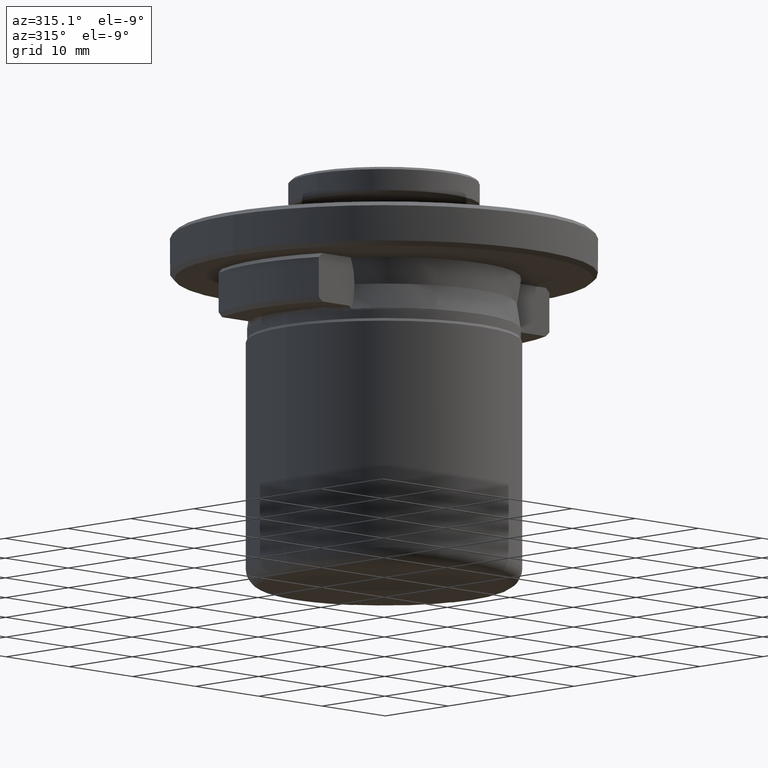
[diagram: clean part render]
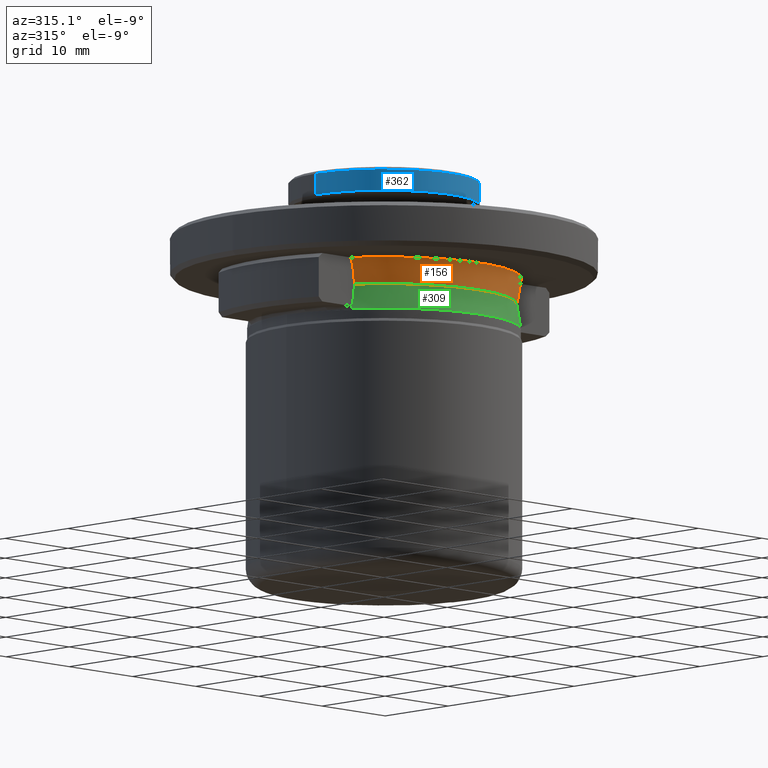
[diagram: same view with three faces highlighted in distinct colors, each labeled with its STEP entity id]
A machine part, auxiliary view with three faces highlighted in distinct colors.
Their STEP definitions:

[orange] entity #156 — the highlighted face is a freeform B-spline surface patch.
#75 = CARTESIAN_POINT ( 'NONE',  ( -12.60188477980667600, -7.949999999999998400, 4.986887970934607700 ) ) ;
#82 = EDGE_CURVE ( 'NONE', #1122, #205, #909, .T. ) ;
#103 = EDGE_CURVE ( 'NONE', #205, #1400, #744, .T. ) ;
#120 = CARTESIAN_POINT ( 'NONE',  ( -13.75342066000000000, -7.969989367000000200, 8.593484004000002200 ) ) ;
#141 = CARTESIAN_POINT ( 'NONE',  ( -12.65280249184317700, -7.950000000000002000, 5.491855283282468700 ) ) ;
#143 = CARTESIAN_POINT ( 'NONE',  ( 12.85084947184995100, -7.949999999999985100, 6.480297289655153400 ) ) ;
#156 = ADVANCED_FACE ( 'NONE', ( #249 ), #256, .F. ) ;
#196 =( BOUNDED_CURVE ( )  B_SPLINE_CURVE ( 3, ( #370, #1384, #513, #1535 ),
 .UNSPECIFIED., .F., .F. ) 
 B_SPLINE_CURVE_WITH_KNOTS ( ( 4, 4 ),
 ( 0.0002294820974848767600, 0.03175008702777497300 ),
 .UNSPECIFIED. ) 
 CURVE ( )  GEOMETRIC_REPRESENTATION_ITEM ( )  RATIONAL_B_SPLINE_CURVE ( ( 0.9752203916884096800, 0.6606863898820863900, 0.6606863898822233900, 0.9752203916888209100 ) ) 
 REPRESENTATION_ITEM ( '' )  );
#205 = VERTEX_POINT ( 'NONE', #1415 ) ;
#249 = FACE_OUTER_BOUND ( 'NONE', #815, .T. ) ;
#256 =( BOUNDED_SURFACE ( )  B_SPLINE_SURFACE ( 3, 3, ( 
 ( #1729, #1021, #1102, #1681 ),
 ( #1829, #377, #1365, #1184 ),
 ( #735, #753, #1038, #1048 ),
 ( #120, #881, #388, #1465 ) ),
 .UNSPECIFIED., .F., .F., .F. ) 
 B_SPLINE_SURFACE_WITH_KNOTS ( ( 4, 4 ),
 ( 4, 4 ),
 ( 0.0000000000000000000, 1.000000000000000000 ),
 ( 0.0000000000000000000, 1.000000000000000000 ),
 .UNSPECIFIED. ) 
 GEOMETRIC_REPRESENTATION_ITEM ( )  RATIONAL_B_SPLINE_SURFACE ( (
 ( 1.000000000000000000, 0.6675925262800090900, 0.6675925262800090900, 1.000000000000000000),
 ( 0.9726495440996750800, 0.6493335663306010200, 0.6493335663306010200, 0.9726495440996750800),
 ( 0.9726495440996750800, 0.6493335663306010200, 0.6493335663306010200, 0.9726495440996750800),
 ( 1.000000000000000000, 0.6675925262800090900, 0.6675925262800090900, 1.000000000000000000) ) ) 
 REPRESENTATION_ITEM ( '' )  SURFACE ( )  );
#291 = CARTESIAN_POINT ( 'NONE',  ( 5.204170427930421300E-015, 2.532479434491641300E-011, 4.478485616159577600 ) ) ;
#299 = CARTESIAN_POINT ( 'NONE',  ( -12.99950658810082000, -7.950000000000002000, 6.969791976195358200 ) ) ;
#370 = CARTESIAN_POINT ( 'NONE',  ( 13.19009165178885300, -7.949999999890235500, 7.438485615054234200 ) ) ;
#377 = CARTESIAN_POINT ( 'NONE',  ( -6.380965633999999800, -18.44760542900000300, 5.320036143999999500 ) ) ;
#388 = CARTESIAN_POINT ( 'NONE',  ( 6.867173271999999600, -19.85324952300000200, 8.593484004000002200 ) ) ;
#418 = CARTESIAN_POINT ( 'NONE',  ( -12.60188477964945100, -7.950000000000000200, 4.478485616309445300 ) ) ;
#453 = ORIENTED_EDGE ( 'NONE', *, *, #82, .F. ) ;
#513 = CARTESIAN_POINT ( 'NONE',  ( -6.489839730005988000, -19.06659584101090800, 7.438485615027141200 ) ) ;
#589 = CARTESIAN_POINT ( 'NONE',  ( 12.60188477980673700, -7.949999999999998400, 4.987038944252672600 ) ) ;
#735 = CARTESIAN_POINT ( 'NONE',  ( -13.06160257300000200, -7.569086716999999400, 7.038194950000000300 ) ) ;
#744 = CIRCLE ( 'NONE', #1471, 14.89999999993788300 ) ;
#753 = CARTESIAN_POINT ( 'NONE',  ( -6.521743957000000000, -18.85460071800000400, 7.038194949999999400 ) ) ;
#815 = EDGE_LOOP ( 'NONE', ( #453, #1803, #1699, #1895 ) ) ;
#881 = CARTESIAN_POINT ( 'NONE',  ( -6.867173271999999600, -19.85324952300000200, 8.593484004000002200 ) ) ;
#909 = B_SPLINE_CURVE_WITH_KNOTS ( 'NONE', 3,
 ( #1767, #1621, #143, #1327, #589, #1616 ),
 .UNSPECIFIED., .F., .F.,
 ( 4, 2, 4 ),
 ( 0.0003645973360006911200, 0.001884080257134381700, 0.003403563178268072300 ),
 .UNSPECIFIED. ) ;
#982 = EDGE_CURVE ( 'NONE', #1122, #1166, #196, .T. ) ;
#1021 = CARTESIAN_POINT ( 'NONE',  ( -6.456389356999999900, -18.66565817500000100, 3.579984865000000600 ) ) ;
#1038 = CARTESIAN_POINT ( 'NONE',  ( 6.521743957000000000, -18.85460071800000400, 7.038194949999999400 ) ) ;
#1042 = EDGE_CURVE ( 'NONE', #1400, #1166, #1315, .T. ) ;
#1048 = CARTESIAN_POINT ( 'NONE',  ( 13.06160257300000200, -7.569086716999999400, 7.038194950000000300 ) ) ;
#1102 = CARTESIAN_POINT ( 'NONE',  ( 6.456389356999999900, -18.66565817500000100, 3.579984865000000600 ) ) ;
#1122 = VERTEX_POINT ( 'NONE', #1350 ) ;
#1166 = VERTEX_POINT ( 'NONE', #1220 ) ;
#1184 = CARTESIAN_POINT ( 'NONE',  ( 12.77965490400000300, -7.405700459999999400, 5.320036143999999500 ) ) ;
#1188 = CARTESIAN_POINT ( 'NONE',  ( -12.85255390096339000, -7.950000000000000200, 6.487167108542434100 ) ) ;
#1220 = CARTESIAN_POINT ( 'NONE',  ( -13.19009165193771700, -7.950000000000000200, 7.438485615024348800 ) ) ;
#1315 = B_SPLINE_CURVE_WITH_KNOTS ( 'NONE', 3,
 ( #1550, #75, #141, #1188, #299, #1325 ),
 .UNSPECIFIED., .F., .F.,
 ( 4, 2, 4 ),
 ( 6.548166900401175800E-015, 0.001518643679664525500, 0.003037287359322502800 ),
 .UNSPECIFIED. ) ;
#1316 = DIRECTION ( 'NONE',  ( 0.0000000000000000000, -0.0000000000000000000, -1.000000000000000000 ) ) ;
#1325 = CARTESIAN_POINT ( 'NONE',  ( -13.19009165193771700, -7.950000000000000200, 7.438485615024348800 ) ) ;
#1327 = CARTESIAN_POINT ( 'NONE',  ( 12.65255785788157200, -7.949999999999985100, 5.488997398290579500 ) ) ;
#1350 = CARTESIAN_POINT ( 'NONE',  ( 13.19009165178885300, -7.949999999890235500, 7.438485615054234200 ) ) ;
#1365 = CARTESIAN_POINT ( 'NONE',  ( 6.380965633999999800, -18.44760542900000300, 5.320036143999999500 ) ) ;
#1384 = CARTESIAN_POINT ( 'NONE',  ( 6.489839729990365000, -19.06659584101806000, 7.438485615027142100 ) ) ;
#1400 = VERTEX_POINT ( 'NONE', #418 ) ;
#1415 = CARTESIAN_POINT ( 'NONE',  ( 12.60188477964879200, -7.950000000000000200, 4.478485616234512400 ) ) ;
#1465 = CARTESIAN_POINT ( 'NONE',  ( 13.75342066000000000, -7.969989367000000200, 8.593484004000002200 ) ) ;
#1471 = AXIS2_PLACEMENT_3D ( 'NONE', #291, #1316, #1762 ) ;
#1535 = CARTESIAN_POINT ( 'NONE',  ( -13.19009165193771700, -7.950000000000000200, 7.438485615024348800 ) ) ;
#1550 = CARTESIAN_POINT ( 'NONE',  ( -12.60188477964945100, -7.950000000000000200, 4.478485616309445300 ) ) ;
#1616 = CARTESIAN_POINT ( 'NONE',  ( 12.60188477964879200, -7.950000000000000200, 4.478485616234512400 ) ) ;
#1621 = CARTESIAN_POINT ( 'NONE',  ( 12.99913754613915600, -7.950000000000000200, 6.968884414935886600 ) ) ;
#1681 = CARTESIAN_POINT ( 'NONE',  ( 12.93071184499999900, -7.493236662000000200, 3.579984865000000100 ) ) ;
#1699 = ORIENTED_EDGE ( 'NONE', *, *, #1042, .F. ) ;
#1729 = CARTESIAN_POINT ( 'NONE',  ( -12.93071184499999900, -7.493236662000000200, 3.579984865000000100 ) ) ;
#1762 = DIRECTION ( 'NONE',  ( -1.000000000000000000, 0.0000000000000000000, 0.0000000000000000000 ) ) ;
#1767 = CARTESIAN_POINT ( 'NONE',  ( 13.19009165178885300, -7.949999999890235500, 7.438485615054234200 ) ) ;
#1803 = ORIENTED_EDGE ( 'NONE', *, *, #982, .T. ) ;
#1829 = CARTESIAN_POINT ( 'NONE',  ( -12.77965490400000300, -7.405700459999999400, 5.320036143999999500 ) ) ;
#1895 = ORIENTED_EDGE ( 'NONE', *, *, #103, .F. ) ;

[blue] entity #362 — the highlighted cylindrical surface (partial cylindrical patch) has radius 10.75 mm, axis along (0, 0, -1).
#14 = LINE ( 'NONE', #1397, #1537 ) ;
#52 = CIRCLE ( 'NONE', #79, 10.75000000000000000 ) ;
#53 = DIRECTION ( 'NONE',  ( 1.000000000000000000, 0.0000000000000000000, 8.391220534957578000E-015 ) ) ;
#79 = AXIS2_PLACEMENT_3D ( 'NONE', #787, #1808, #933 ) ;
#226 = DIRECTION ( 'NONE',  ( 0.0000000000000000000, 0.0000000000000000000, -1.000000000000000000 ) ) ;
#275 = VERTEX_POINT ( 'NONE', #1714 ) ;
#290 = LINE ( 'NONE', #1338, #1030 ) ;
#311 = DIRECTION ( 'NONE',  ( 0.0000000000000000000, 0.0000000000000000000, -1.000000000000000000 ) ) ;
#362 = ADVANCED_FACE ( 'NONE', ( #1820 ), #603, .T. ) ;
#404 = EDGE_LOOP ( 'NONE', ( #917, #612, #432, #470 ) ) ;
#425 = AXIS2_PLACEMENT_3D ( 'NONE', #561, #1300, #1441 ) ;
#432 = ORIENTED_EDGE ( 'NONE', *, *, #784, .T. ) ;
#444 = CARTESIAN_POINT ( 'NONE',  ( -10.75000000000000000, 0.0000000000000000000, 15.73848561499991000 ) ) ;
#470 = ORIENTED_EDGE ( 'NONE', *, *, #1602, .T. ) ;
#561 = CARTESIAN_POINT ( 'NONE',  ( 0.0000000000000000000, 0.0000000000000000000, 18.13848561500000400 ) ) ;
#603 = CYLINDRICAL_SURFACE ( 'NONE', #425, 10.75000000000000000 ) ;
#612 = ORIENTED_EDGE ( 'NONE', *, *, #918, .F. ) ;
#784 = EDGE_CURVE ( 'NONE', #1586, #1499, #290, .T. ) ;
#787 = CARTESIAN_POINT ( 'NONE',  ( 0.0000000000000000000, 0.0000000000000000000, 18.13848561500000400 ) ) ;
#917 = ORIENTED_EDGE ( 'NONE', *, *, #1725, .F. ) ;
#918 = EDGE_CURVE ( 'NONE', #1586, #1700, #52, .T. ) ;
#933 = DIRECTION ( 'NONE',  ( -1.000000000000000000, 0.0000000000000000000, 0.0000000000000000000 ) ) ;
#940 = DIRECTION ( 'NONE',  ( 0.0000000000000000000, 0.0000000000000000000, 1.000000000000000000 ) ) ;
#1030 = VECTOR ( 'NONE', #311, 1000.000000000000000 ) ;
#1263 = AXIS2_PLACEMENT_3D ( 'NONE', #1819, #940, #53 ) ;
#1300 = DIRECTION ( 'NONE',  ( 0.0000000000000000000, 0.0000000000000000000, -1.000000000000000000 ) ) ;
#1338 = CARTESIAN_POINT ( 'NONE',  ( -10.75000000000000000, 0.0000000000000000000, 18.13848561500000400 ) ) ;
#1397 = CARTESIAN_POINT ( 'NONE',  ( 10.75000000000000000, 1.316495309083404800E-015, 18.13848561500000400 ) ) ;
#1441 = DIRECTION ( 'NONE',  ( -1.000000000000000000, 0.0000000000000000000, 0.0000000000000000000 ) ) ;
#1499 = VERTEX_POINT ( 'NONE', #444 ) ;
#1527 = CIRCLE ( 'NONE', #1263, 10.75000000000000000 ) ;
#1536 = CARTESIAN_POINT ( 'NONE',  ( 10.75000000000000000, 1.316495309083404800E-015, 18.13848561500000400 ) ) ;
#1537 = VECTOR ( 'NONE', #226, 1000.000000000000000 ) ;
#1586 = VERTEX_POINT ( 'NONE', #1781 ) ;
#1602 = EDGE_CURVE ( 'NONE', #1499, #275, #1527, .T. ) ;
#1700 = VERTEX_POINT ( 'NONE', #1536 ) ;
#1714 = CARTESIAN_POINT ( 'NONE',  ( 10.75000000000000000, 1.316495309083404800E-015, 15.73848561499991000 ) ) ;
#1725 = EDGE_CURVE ( 'NONE', #1700, #275, #14, .T. ) ;
#1781 = CARTESIAN_POINT ( 'NONE',  ( -10.75000000000000000, 0.0000000000000000000, 18.13848561500000400 ) ) ;
#1808 = DIRECTION ( 'NONE',  ( -0.0000000000000000000, -0.0000000000000000000, 1.000000000000000000 ) ) ;
#1819 = CARTESIAN_POINT ( 'NONE',  ( 0.0000000000000000000, 0.0000000000000000000, 15.73848561499991000 ) ) ;
#1820 = FACE_OUTER_BOUND ( 'NONE', #404, .T. ) ;

[green] entity #309 — the highlighted face is a freeform B-spline surface patch.
#13 = AXIS2_PLACEMENT_3D ( 'NONE', #1391, #522, #1546 ) ;
#51 = CARTESIAN_POINT ( 'NONE',  ( 6.437521500999999100, -18.72266309399999800, 2.239605722999999900 ) ) ;
#86 = VERTEX_POINT ( 'NONE', #1323 ) ;
#103 = EDGE_CURVE ( 'NONE', #205, #1400, #744, .T. ) ;
#112 =( BOUNDED_SURFACE ( )  B_SPLINE_SURFACE ( 3, 3, ( 
 ( #639, #1524, #1667, #792 ),
 ( #1816, #937, #51, #1091 ),
 ( #198, #1234, #360, #1378 ),
 ( #507, #1672, #1528, #648 ) ),
 .UNSPECIFIED., .F., .F., .F. ) 
 B_SPLINE_SURFACE_WITH_KNOTS ( ( 4, 4 ),
 ( 4, 4 ),
 ( 0.0000000000000000000, 1.000000000000000000 ),
 ( 0.0000000000000000000, 1.000000000000000000 ),
 .UNSPECIFIED. ) 
 GEOMETRIC_REPRESENTATION_ITEM ( )  RATIONAL_B_SPLINE_SURFACE ( (
 ( 1.000000000000000000, 0.6712973884753921100, 0.6712973884753921100, 1.000000000000000000),
 ( 0.9774545972394599300, 0.6561627184801160900, 0.6561627184801160900, 0.9774545972394599300),
 ( 0.9774545972394599300, 0.6561627184801160900, 0.6561627184801160900, 0.9774545972394599300),
 ( 1.000000000000000000, 0.6712973884753921100, 0.6712973884753921100, 1.000000000000000000) ) ) 
 REPRESENTATION_ITEM ( '' )  SURFACE ( )  );
#198 = CARTESIAN_POINT ( 'NONE',  ( -12.74601410299999800, -7.496181657999997600, 3.802039048000000100 ) ) ;
#205 = VERTEX_POINT ( 'NONE', #1415 ) ;
#291 = CARTESIAN_POINT ( 'NONE',  ( 5.204170427930421300E-015, 2.532479434491641300E-011, 4.478485616159577600 ) ) ;
#309 = ADVANCED_FACE ( 'NONE', ( #1139 ), #112, .F. ) ;
#360 = CARTESIAN_POINT ( 'NONE',  ( 6.329044982000000100, -18.40717376800000300, 3.802039048000000600 ) ) ;
#389 = CIRCLE ( 'NONE', #13, 15.36146845560654100 ) ;
#407 = B_SPLINE_CURVE_WITH_KNOTS ( 'NONE', 3,
 ( #1701, #1412, #685, #1708, #831, #1860 ),
 .UNSPECIFIED., .F., .F.,
 ( 4, 2, 4 ),
 ( 0.0000000000000000000, 0.001455991599470953600, 0.002911983198941907200 ),
 .UNSPECIFIED. ) ;
#418 = CARTESIAN_POINT ( 'NONE',  ( -12.60188477964945100, -7.950000000000000200, 4.478485616309445300 ) ) ;
#476 = B_SPLINE_CURVE_WITH_KNOTS ( 'NONE', 3,
 ( #1258, #1398, #529, #1553, #674, #1697 ),
 .UNSPECIFIED., .F., .F.,
 ( 4, 2, 4 ),
 ( 0.0000000000000000000, 0.001455991599470953600, 0.002911983198941907200 ),
 .UNSPECIFIED. ) ;
#483 = EDGE_CURVE ( 'NONE', #1400, #1355, #476, .T. ) ;
#507 = CARTESIAN_POINT ( 'NONE',  ( -12.88222540099999900, -7.576290202000000900, 5.376986363999999500 ) ) ;
#522 = DIRECTION ( 'NONE',  ( 0.0000000000000000000, -7.062286934231402900E-018, -1.000000000000000000 ) ) ;
#529 = CARTESIAN_POINT ( 'NONE',  ( -12.64875544744906200, -7.949999999999996600, 3.506562385610843400 ) ) ;
#639 = CARTESIAN_POINT ( 'NONE',  ( -13.52282962900000000, -7.953042152000001900, 0.7953634549999999400 ) ) ;
#648 = CARTESIAN_POINT ( 'NONE',  ( 12.88222540099999900, -7.576290202000000900, 5.376986363999999500 ) ) ;
#674 = CARTESIAN_POINT ( 'NONE',  ( -12.96762867601157000, -7.949999999999996600, 2.087259394703678200 ) ) ;
#685 = CARTESIAN_POINT ( 'NONE',  ( 12.64875544744905900, -7.949999999999998400, 3.506562385610845700 ) ) ;
#744 = CIRCLE ( 'NONE', #1471, 14.89999999993788300 ) ;
#774 = ORIENTED_EDGE ( 'NONE', *, *, #483, .T. ) ;
#792 = CARTESIAN_POINT ( 'NONE',  ( 13.52282962900000000, -7.953042152000001900, 0.7953634549999999400 ) ) ;
#831 = CARTESIAN_POINT ( 'NONE',  ( 12.96762867601156800, -7.950000000000000200, 2.087259394703679500 ) ) ;
#832 = CARTESIAN_POINT ( 'NONE',  ( -13.14428442760649100, -7.950000000000000200, 1.633581561958929600 ) ) ;
#937 = CARTESIAN_POINT ( 'NONE',  ( -6.437521500999999100, -18.72266309399999800, 2.239605722999999900 ) ) ;
#1014 = EDGE_LOOP ( 'NONE', ( #774, #1449, #1754, #1064 ) ) ;
#1064 = ORIENTED_EDGE ( 'NONE', *, *, #103, .T. ) ;
#1091 = CARTESIAN_POINT ( 'NONE',  ( 12.96447411499999800, -7.624662288999998900, 2.239605722999999900 ) ) ;
#1139 = FACE_OUTER_BOUND ( 'NONE', #1014, .T. ) ;
#1234 = CARTESIAN_POINT ( 'NONE',  ( -6.329044982000000100, -18.40717376800000300, 3.802039048000000600 ) ) ;
#1258 = CARTESIAN_POINT ( 'NONE',  ( -12.60188477964945100, -7.950000000000000200, 4.478485616309445300 ) ) ;
#1261 = EDGE_CURVE ( 'NONE', #86, #1355, #389, .T. ) ;
#1316 = DIRECTION ( 'NONE',  ( 0.0000000000000000000, -0.0000000000000000000, -1.000000000000000000 ) ) ;
#1323 = CARTESIAN_POINT ( 'NONE',  ( 13.14428442762027200, -7.950000000000000200, 1.633581560802892700 ) ) ;
#1355 = VERTEX_POINT ( 'NONE', #832 ) ;
#1378 = CARTESIAN_POINT ( 'NONE',  ( 12.74601410299999800, -7.496181657999997600, 3.802039048000000100 ) ) ;
#1391 = CARTESIAN_POINT ( 'NONE',  ( 0.0000000000000000000, 9.536157500565948900E-019, 1.633581560591981000 ) ) ;
#1398 = CARTESIAN_POINT ( 'NONE',  ( -12.60188477949831500, -7.949999999999996600, 3.991488783735479100 ) ) ;
#1400 = VERTEX_POINT ( 'NONE', #418 ) ;
#1412 = CARTESIAN_POINT ( 'NONE',  ( 12.60188477949831700, -7.950000000000000200, 3.991488783735480400 ) ) ;
#1415 = CARTESIAN_POINT ( 'NONE',  ( 12.60188477964879200, -7.950000000000000200, 4.478485616234512400 ) ) ;
#1449 = ORIENTED_EDGE ( 'NONE', *, *, #1261, .F. ) ;
#1471 = AXIS2_PLACEMENT_3D ( 'NONE', #291, #1316, #1762 ) ;
#1524 = CARTESIAN_POINT ( 'NONE',  ( -6.714773443000000300, -19.52901297599999700, 0.7953634549999998300 ) ) ;
#1528 = CARTESIAN_POINT ( 'NONE',  ( 6.396680825999999900, -18.60388350000000200, 5.376986363999999500 ) ) ;
#1546 = DIRECTION ( 'NONE',  ( 0.0000000000000000000, -1.000000000000000000, 1.411586627435736600E-017 ) ) ;
#1553 = CARTESIAN_POINT ( 'NONE',  ( -12.83224210311896300, -7.949999999999994800, 2.552328994703144400 ) ) ;
#1667 = CARTESIAN_POINT ( 'NONE',  ( 6.714773443000000300, -19.52901297599999700, 0.7953634549999998300 ) ) ;
#1672 = CARTESIAN_POINT ( 'NONE',  ( -6.396680825999999900, -18.60388350000000200, 5.376986363999999500 ) ) ;
#1697 = CARTESIAN_POINT ( 'NONE',  ( -13.14428442760649100, -7.950000000000000200, 1.633581561958929600 ) ) ;
#1701 = CARTESIAN_POINT ( 'NONE',  ( 12.60188477964879200, -7.950000000000000200, 4.478485616234512400 ) ) ;
#1708 = CARTESIAN_POINT ( 'NONE',  ( 12.83224210311896000, -7.949999999999996600, 2.552328994703145300 ) ) ;
#1754 = ORIENTED_EDGE ( 'NONE', *, *, #1755, .F. ) ;
#1755 = EDGE_CURVE ( 'NONE', #205, #86, #407, .T. ) ;
#1762 = DIRECTION ( 'NONE',  ( -1.000000000000000000, 0.0000000000000000000, 0.0000000000000000000 ) ) ;
#1816 = CARTESIAN_POINT ( 'NONE',  ( -12.96447411499999800, -7.624662288999998900, 2.239605722999999900 ) ) ;
#1860 = CARTESIAN_POINT ( 'NONE',  ( 13.14428442762027200, -7.950000000000000200, 1.633581560802892700 ) ) ;